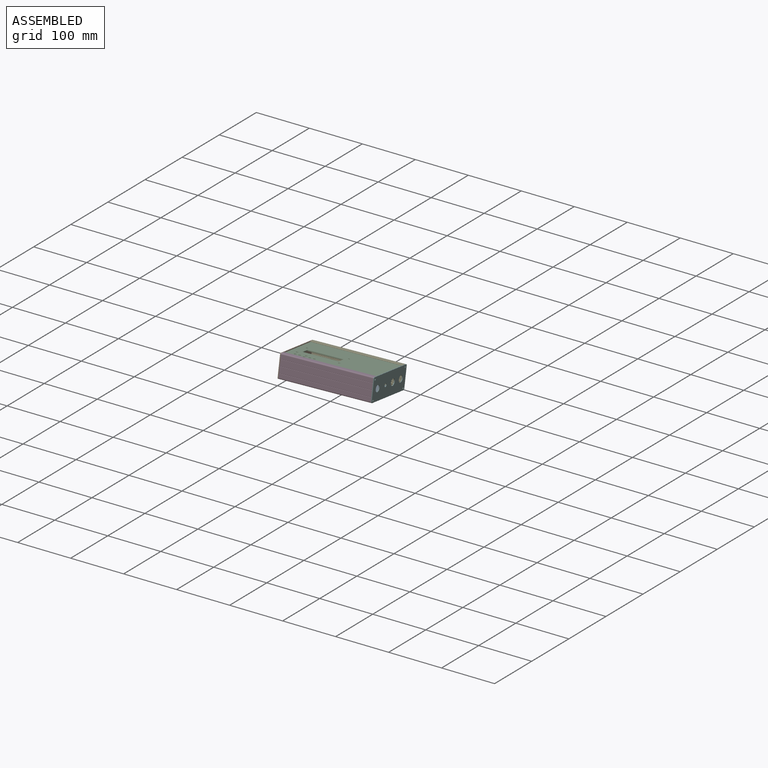
[diagram: assembled view]
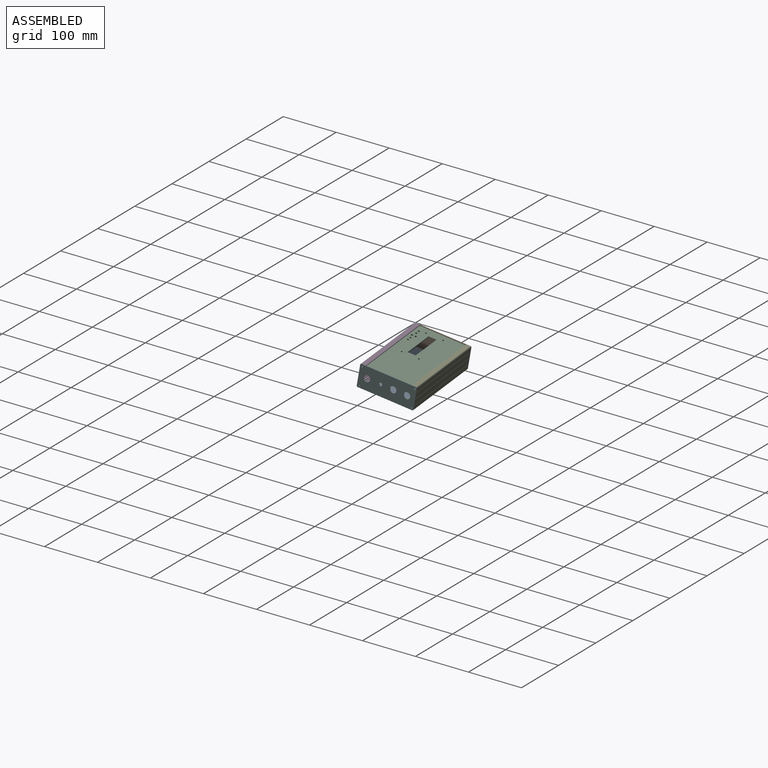
[diagram: assembled view, second angle]
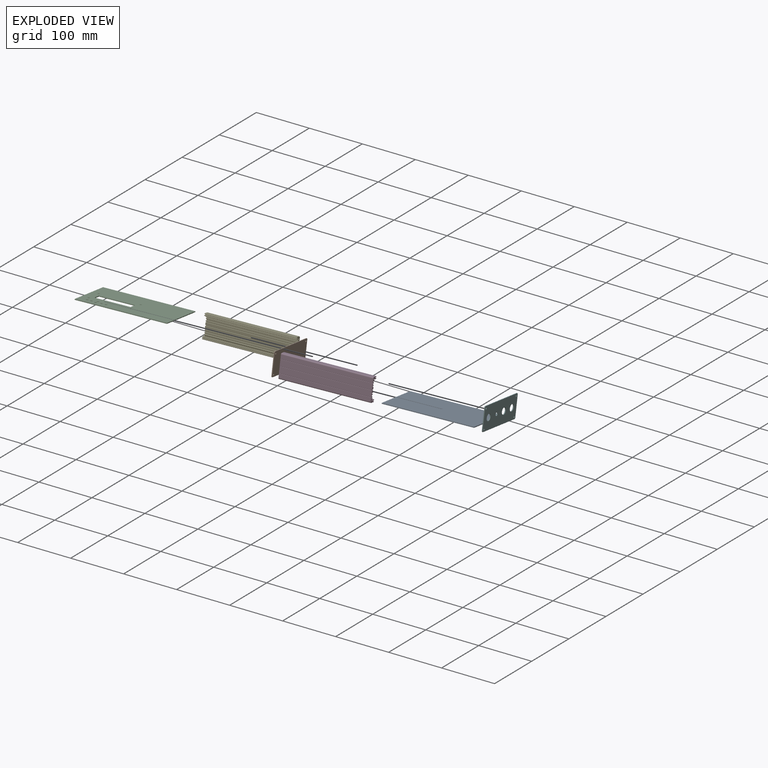
[diagram: exploded view]
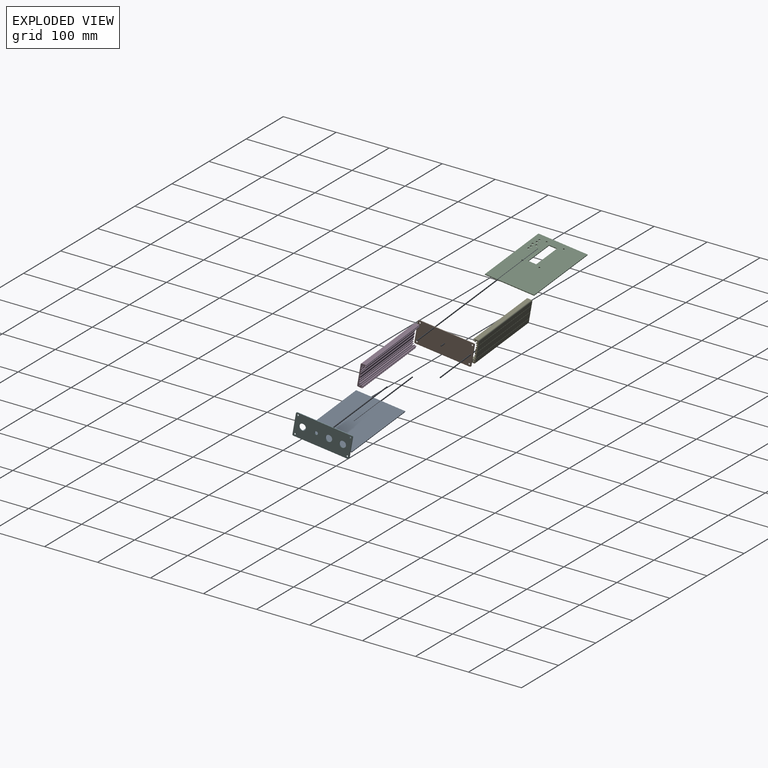
[diagram: exploded view, second angle]
ASSEMBLY  parts=6 mates=5
PART A: 6 faces, bbox 165x89.1x1.5 mm
  f0: plane 89.1x1.5mm, normal (-1,0,0), area 133.6mm2, adj f1,f3,f4,f5
  f1: plane 165x1.5mm, normal (0,-1,0), area 247.5mm2, adj f0,f2,f4,f5
  f2: plane 89.1x1.5mm, normal (1,0,0), area 133.6mm2, adj f1,f3,f4,f5
  f3: plane 165x1.5mm, normal (0,1,0), area 247.5mm2, adj f0,f2,f4,f5
  f4: plane 165x89.1mm, normal (0,0,1), area 14701.5mm2, adj f0,f1,f2,f3
  f5: plane 165x89.1mm, normal (0,0,-1), area 14701.5mm2, adj f0,f1,f2,f3
PART B: 14 faces, bbox 102.7x42x1.5 mm
  f0: cylinder r=2mm len=2mm, axis (0,0,-1), area 4.7mm2, adj f1,f8,f12,f13
  f1: plane 98.7x1.5mm, normal (0,-1,0), area 148.1mm2, adj f0,f2,f12,f13
  f2: cylinder r=2mm len=2mm, axis (0,0,-1), area 4.7mm2, adj f1,f3,f12,f13
  f3: plane 38x1.5mm, normal (1,0,0), area 57mm2, adj f2,f4,f12,f13
  f4: cylinder r=2mm len=2mm, axis (0,0,-1), area 4.7mm2, adj f3,f5,f12,f13
  f5: plane 98.7x1.5mm, normal (0,1,0), area 148.1mm2, adj f4,f6,f12,f13
  f6: cylinder r=2mm len=2mm, axis (0,0,-1), area 4.7mm2, adj f5,f8,f12,f13
  f7: cylinder r=1.5mm len=3mm, axis (0,0,-1), area 14.1mm2, adj f12,f13
  f8: plane 38x1.5mm, normal (-1,0,0), area 57mm2, adj f0,f6,f12,f13
  f9: cylinder r=1.5mm len=3mm, axis (0,0,-1), area 14.1mm2, adj f12,f13
  f10: cylinder r=1.5mm len=3mm, axis (0,0,-1), area 14.1mm2, adj f12,f13
  f11: cylinder r=1.5mm len=3mm, axis (0,0,-1), area 14.1mm2, adj f12,f13
  f12: plane 102.7x42mm, normal (0,0,1), area 4281.7mm2, adj f0,f1,f2,f3,f4,f5,f6,f7
  f13: plane 102.7x42mm, normal (0,0,-1), area 4281.7mm2, adj f0,f1,f2,f3,f4,f5,f6,f7
PART C: 20 faces, bbox 165x89.1x1.5 mm
  f0: plane 89.1x1.5mm, normal (-1,0,0), area 133.7mm2, adj f1,f17,f18,f19
  f1: plane 165x1.5mm, normal (0,-1,0), area 247.5mm2, adj f0,f2,f18,f19
  f2: plane 89.1x1.5mm, normal (1,0,0), area 133.7mm2, adj f1,f17,f18,f19
  f3: plane 64.5x1.5mm, normal (0,1,0), area 96.8mm2, adj f4,f6,f18,f19
  f4: plane 14.5x1.5mm, normal (1,0,0), area 21.8mm2, adj f3,f5,f18,f19
  f5: plane 64.5x1.5mm, normal (0,-1,0), area 96.8mm2, adj f4,f6,f18,f19
  f6: plane 14.5x1.5mm, normal (-1,0,0), area 21.8mm2, adj f3,f5,f18,f19
  f7: cylinder r=1.9mm len=3.8mm, axis (0,0,-1), area 17.9mm2, adj f18,f19
  f8: cylinder r=1.9mm len=3.8mm, axis (0,0,-1), area 17.9mm2, adj f18,f19
  f9: cylinder r=1.9mm len=3.8mm, axis (0,0,-1), area 17.9mm2, adj f18,f19
  f10: cylinder r=1.9mm len=3.8mm, axis (0,0,-1), area 17.9mm2, adj f18,f19
  f11: cylinder r=1.9mm len=3.8mm, axis (0,0,-1), area 17.9mm2, adj f18,f19
  f12: cylinder r=1.9mm len=3.8mm, axis (0,0,-1), area 17.9mm2, adj f18,f19
  f13: cylinder r=1.55mm len=3.1mm, axis (0,0,-1), area 14.6mm2, adj f18,f19
  f14: cylinder r=1.55mm len=3.1mm, axis (0,0,-1), area 14.6mm2, adj f18,f19
  f15: cylinder r=1.55mm len=3.1mm, axis (0,0,-1), area 14.6mm2, adj f18,f19
  f16: cylinder r=1.55mm len=3.1mm, axis (0,0,-1), area 14.6mm2, adj f18,f19
  f17: plane 165x1.5mm, normal (0,1,0), area 247.5mm2, adj f0,f2,f18,f19
  f18: plane 165x89.1mm, normal (0,0,1), area 13668mm2, adj f0,f1,f2,f3,f4,f5,f6,f7
  f19: plane 165x89.1mm, normal (0,0,-1), area 13668mm2, adj f0,f1,f2,f3,f4,f5,f6,f7
PART D: 136 faces, bbox 42x165x10 mm
  f0: cylinder r=0.1mm len=165mm, axis (0,1,0), area 25.9mm2, adj f1,f133,f134,f135
  f1: plane 165x2.8mm, normal (-1,0,0), area 462mm2, adj f0,f2,f134,f135
  f2: cylinder r=0.1mm len=165mm, axis (0,1,0), area 25.9mm2, adj f1,f3,f134,f135
  f3: plane 165x1.4mm, normal (0,0,1), area 231mm2, adj f2,f4,f134,f135
  f4: cylinder r=0.1mm len=165mm, axis (0,1,0), area 25.9mm2, adj f3,f5,f134,f135
  f5: plane 165x2.8mm, normal (1,0,0), area 462mm2, adj f4,f6,f134,f135
  f6: cylinder r=0.1mm len=165mm, axis (0,1,0), area 25.9mm2, adj f5,f7,f134,f135
  f7: plane 165x1mm, normal (0,0,1), area 165mm2, adj f6,f8,f134,f135
  f8: cylinder r=0.1mm len=165mm, axis (0,1,0), area 25.9mm2, adj f7,f9,f134,f135
  f9: plane 165x2.8mm, normal (-1,0,0), area 462mm2, adj f8,f10,f134,f135
  f10: cylinder r=0.1mm len=165mm, axis (0,1,0), area 25.9mm2, adj f9,f11,f134,f135
  f11: plane 165x0.8mm, normal (0,0,1), area 132mm2, adj f10,f12,f134,f135
  f12: cylinder r=0.1mm len=165mm, axis (0,1,0), area 25.9mm2, adj f11,f13,f134,f135
  f13: plane 165x0.73mm, normal (-1,0,0), area 120mm2, adj f12,f14,f134,f135
  f14: cylinder r=0.1mm len=165mm, axis (0,1,0), area 13mm2, adj f13,f15,f134,f135
  f15: plane 165x0.49mm, normal (-0.71,0,-0.71), area 114.4mm2, adj f14,f16,f134,f135
  f16: cylinder r=0.5mm len=165mm, axis (0,1,0), area 182.3mm2, adj f15,f17,f134,f135
  f17: cylinder r=1.5mm len=165mm, axis (0,1,0), area 256.1mm2, adj f16,f18,f134,f135
  f18: cylinder r=0.5mm len=165mm, axis (0,1,0), area 151.5mm2, adj f17,f19,f134,f135
  f19: cylinder r=1.5mm len=165mm, axis (0,1,0), area 256.1mm2, adj f18,f20,f134,f135
  f20: cylinder r=0.5mm len=165mm, axis (0,1,0), area 151.5mm2, adj f19,f21,f134,f135
  f21: cylinder r=1.5mm len=165mm, axis (0,1,0), area 256.1mm2, adj f20,f22,f134,f135
  f22: cylinder r=0.5mm len=165mm, axis (0,1,0), area 182.3mm2, adj f21,f23,f134,f135
  f23: plane 165x0.49mm, normal (0.71,0,0.71), area 114.4mm2, adj f22,f24,f134,f135
  f24: cylinder r=0.1mm len=165mm, axis (0,1,0), area 13mm2, adj f23,f25,f134,f135
  f25: plane 165x0.58mm, normal (0,0,1), area 95.2mm2, adj f24,f26,f134,f135
  f26: cylinder r=0.1mm len=165mm, axis (0,1,0), area 25.9mm2, adj f25,f27,f134,f135
  f27: plane 165x3.3mm, normal (-1,0,0), area 544.5mm2, adj f26,f28,f134,f135
  f28: cylinder r=0.1mm len=165mm, axis (0,1,0), area 25.9mm2, adj f27,f29,f134,f135
  f29: plane 165x1.6mm, normal (0,0,1), area 264mm2, adj f28,f30,f134,f135
  f30: cylinder r=0.1mm len=165mm, axis (0,1,0), area 25.9mm2, adj f29,f31,f134,f135
  f31: plane 165x1.8mm, normal (1,0,0), area 297mm2, adj f30,f32,f134,f135
  f32: cylinder r=0.1mm len=165mm, axis (0,1,0), area 25.9mm2, adj f31,f33,f134,f135
  f33: plane 165x1.3mm, normal (0,0,1), area 214.5mm2, adj f32,f34,f134,f135
  f34: cylinder r=0.1mm len=165mm, axis (0,1,0), area 25.9mm2, adj f33,f35,f134,f135
  f35: plane 165x1.8mm, normal (-1,0,0), area 297mm2, adj f34,f36,f134,f135
  f36: cylinder r=0.1mm len=165mm, axis (0,1,0), area 25.9mm2, adj f35,f37,f134,f135
  f37: plane 165x2.5mm, normal (0,0,1), area 412.5mm2, adj f36,f38,f134,f135
  f38: cylinder r=0.1mm len=165mm, axis (0,1,0), area 25.9mm2, adj f37,f39,f134,f135
  f39: plane 165x1.8mm, normal (1,0,0), area 297mm2, adj f38,f40,f134,f135
  f40: cylinder r=0.1mm len=165mm, axis (0,1,0), area 25.9mm2, adj f39,f41,f134,f135
  f41: plane 165x1.3mm, normal (0,0,1), area 214.5mm2, adj f40,f42,f134,f135
  f42: cylinder r=0.1mm len=165mm, axis (0,1,0), area 25.9mm2, adj f41,f43,f134,f135
  f43: plane 165x1.8mm, normal (-1,0,0), area 297mm2, adj f42,f44,f134,f135
  f44: cylinder r=0.1mm len=165mm, axis (0,1,0), area 25.9mm2, adj f43,f45,f134,f135
  f45: plane 165x1.6mm, normal (0,0,1), area 264mm2, adj f44,f46,f134,f135
  f46: cylinder r=0.1mm len=165mm, axis (0,1,0), area 25.9mm2, adj f45,f47,f134,f135
  f47: plane 165x1.8mm, normal (1,0,0), area 297mm2, adj f46,f48,f134,f135
  f48: cylinder r=0.1mm len=165mm, axis (0,1,0), area 25.9mm2, adj f47,f49,f134,f135
  f49: plane 165x3.75mm, normal (0,0,1), area 618.7mm2, adj f48,f50,f134,f135
  f50: cylinder r=0.1mm len=165mm, axis (0,1,0), area 25.9mm2, adj f49,f51,f134,f135
  f51: plane 165x1.8mm, normal (-1,0,0), area 297mm2, adj f50,f52,f134,f135
  f52: cylinder r=0.1mm len=165mm, axis (0,1,0), area 25.9mm2, adj f51,f53,f134,f135
  f53: plane 165x1.6mm, normal (0,0,1), area 264mm2, adj f52,f54,f134,f135
  f54: cylinder r=0.1mm len=165mm, axis (0,1,0), area 25.9mm2, adj f53,f55,f134,f135
  f55: plane 165x1.8mm, normal (1,0,0), area 297mm2, adj f54,f56,f134,f135
  f56: cylinder r=0.1mm len=165mm, axis (0,1,0), area 25.9mm2, adj f55,f57,f134,f135
  f57: plane 165x3.75mm, normal (0,0,1), area 618.7mm2, adj f56,f58,f134,f135
  f58: cylinder r=0.1mm len=165mm, axis (0,1,0), area 25.9mm2, adj f57,f59,f134,f135
  f59: plane 165x1.8mm, normal (-1,0,0), area 297mm2, adj f58,f60,f134,f135
  f60: cylinder r=0.1mm len=165mm, axis (0,1,0), area 25.9mm2, adj f59,f61,f134,f135
  f61: plane 165x1.6mm, normal (0,0,1), area 264mm2, adj f60,f62,f134,f135
  f62: cylinder r=0.1mm len=165mm, axis (0,1,0), area 25.9mm2, adj f61,f63,f134,f135
  f63: plane 165x1.8mm, normal (1,0,0), area 297mm2, adj f62,f64,f134,f135
  f64: cylinder r=0.1mm len=165mm, axis (0,1,0), area 25.9mm2, adj f63,f65,f134,f135
  f65: plane 165x1.3mm, normal (0,0,1), area 214.5mm2, adj f64,f66,f134,f135
  f66: cylinder r=0.1mm len=165mm, axis (0,1,0), area 25.9mm2, adj f65,f67,f134,f135
  f67: plane 165x1.8mm, normal (-1,0,0), area 297mm2, adj f66,f68,f134,f135
  f68: cylinder r=0.1mm len=165mm, axis (0,1,0), area 25.9mm2, adj f67,f69,f134,f135
  f69: plane 165x2.5mm, normal (0,0,1), area 412.5mm2, adj f68,f70,f134,f135
  f70: cylinder r=0.1mm len=165mm, axis (0,1,0), area 25.9mm2, adj f69,f71,f134,f135
  f71: plane 165x1.8mm, normal (1,0,0), area 297mm2, adj f70,f72,f134,f135
  f72: cylinder r=0.1mm len=165mm, axis (0,1,0), area 25.9mm2, adj f71,f73,f134,f135
  f73: plane 165x1.3mm, normal (0,0,1), area 214.5mm2, adj f72,f74,f134,f135
  f74: cylinder r=0.1mm len=165mm, axis (0,1,0), area 25.9mm2, adj f73,f75,f134,f135
  f75: plane 165x1.8mm, normal (-1,0,0), area 297mm2, adj f74,f76,f134,f135
  f76: cylinder r=0.1mm len=165mm, axis (0,1,0), area 25.9mm2, adj f75,f77,f134,f135
  f77: plane 165x1.6mm, normal (0,0,1), area 264mm2, adj f76,f78,f134,f135
  f78: cylinder r=0.1mm len=165mm, axis (0,1,0), area 25.9mm2, adj f77,f79,f134,f135
  f79: plane 165x3.3mm, normal (1,0,0), area 544.5mm2, adj f78,f80,f134,f135
  f80: cylinder r=0.1mm len=165mm, axis (0,1,0), area 25.9mm2, adj f79,f81,f134,f135
  f81: plane 165x0.58mm, normal (0,0,1), area 95.2mm2, adj f80,f82,f134,f135
  f82: cylinder r=0.1mm len=165mm, axis (0,1,0), area 13mm2, adj f81,f83,f134,f135
  f83: plane 165x0.49mm, normal (-0.71,0,0.71), area 114.4mm2, adj f82,f84,f134,f135
  f84: cylinder r=0.5mm len=165mm, axis (0,1,0), area 182.3mm2, adj f83,f85,f134,f135
  f85: cylinder r=1.5mm len=165mm, axis (0,1,0), area 256.1mm2, adj f84,f86,f134,f135
  f86: cylinder r=0.5mm len=165mm, axis (0,1,0), area 151.5mm2, adj f85,f87,f134,f135
  f87: cylinder r=1.5mm len=165mm, axis (0,1,0), area 256.1mm2, adj f86,f88,f134,f135
  f88: cylinder r=0.5mm len=165mm, axis (0,1,0), area 151.5mm2, adj f87,f89,f134,f135
  f89: cylinder r=1.5mm len=165mm, axis (0,1,0), area 256.1mm2, adj f88,f90,f134,f135
  f90: cylinder r=0.5mm len=165mm, axis (0,1,0), area 182.3mm2, adj f89,f91,f134,f135
  f91: plane 165x0.49mm, normal (0.71,0,-0.71), area 114.4mm2, adj f90,f92,f134,f135
  f92: cylinder r=0.1mm len=165mm, axis (0,1,0), area 13mm2, adj f91,f93,f134,f135
  f93: plane 165x0.73mm, normal (1,0,0), area 120mm2, adj f92,f94,f134,f135
  f94: cylinder r=0.1mm len=165mm, axis (0,1,0), area 25.9mm2, adj f93,f95,f134,f135
  f95: plane 165x0.8mm, normal (0,0,1), area 132mm2, adj f94,f96,f134,f135
  f96: cylinder r=0.1mm len=165mm, axis (0,1,0), area 25.9mm2, adj f95,f97,f134,f135
  f97: plane 165x2.8mm, normal (1,0,0), area 462mm2, adj f96,f98,f134,f135
  f98: cylinder r=0.1mm len=165mm, axis (0,1,0), area 25.9mm2, adj f97,f99,f134,f135
  f99: plane 165x1mm, normal (0,0,1), area 165mm2, adj f98,f100,f134,f135
  f100: cylinder r=0.1mm len=165mm, axis (0,1,0), area 25.9mm2, adj f99,f101,f134,f135
  f101: plane 165x2.8mm, normal (-1,0,0), area 462mm2, adj f100,f102,f134,f135
  f102: cylinder r=0.1mm len=165mm, axis (0,1,0), area 25.9mm2, adj f101,f103,f134,f135
  f103: plane 165x1.4mm, normal (0,0,1), area 231mm2, adj f102,f104,f134,f135
  f104: cylinder r=0.1mm len=165mm, axis (0,1,0), area 25.9mm2, adj f103,f105,f134,f135
  f105: plane 165x2.8mm, normal (1,0,0), area 462mm2, adj f104,f106,f134,f135
  f106: cylinder r=0.1mm len=165mm, axis (0,1,0), area 25.9mm2, adj f105,f107,f134,f135
  f107: plane 165x0.1mm, normal (0,0,1), area 16.5mm2, adj f106,f108,f134,f135
  f108: cylinder r=1mm len=165mm, axis (0,1,0), area 259.2mm2, adj f107,f109,f134,f135
  f109: plane 165x7mm, normal (-1,0,0), area 1155mm2, adj f108,f110,f134,f135
  f110: cylinder r=2mm len=165mm, axis (0,1,0), area 518.4mm2, adj f109,f111,f134,f135
  f111: plane 165x7.12mm, normal (0,0,-1), area 1174.3mm2, adj f110,f112,f134,f135
  f112: cylinder r=0.1mm len=165mm, axis (0,1,0), area 13mm2, adj f111,f113,f134,f135
  f113: plane 165x0.24mm, normal (0.71,0,-0.71), area 56.3mm2, adj f112,f114,f134,f135
  f114: cylinder r=0.1mm len=165mm, axis (0,1,0), area 25.9mm2, adj f113,f115,f134,f135
  f115: plane 165x0.24mm, normal (-0.71,0,-0.71), area 56.3mm2, adj f114,f116,f134,f135
  f116: cylinder r=0.1mm len=165mm, axis (0,1,0), area 13mm2, adj f115,f117,f134,f135
  f117: plane 165x10.73mm, normal (0,0,-1), area 1771.2mm2, adj f116,f118,f134,f135
  f118: cylinder r=0.1mm len=165mm, axis (0,1,0), area 13mm2, adj f117,f119,f134,f135
  f119: plane 165x0.24mm, normal (0.71,0,-0.71), area 56.3mm2, adj f118,f120,f134,f135
  f120: cylinder r=0.1mm len=165mm, axis (0,1,0), area 25.9mm2, adj f119,f121,f134,f135
  f121: plane 165x0.24mm, normal (-0.71,0,-0.71), area 56.3mm2, adj f120,f122,f134,f135
  f122: cylinder r=0.1mm len=165mm, axis (0,1,0), area 13mm2, adj f121,f123,f134,f135
  f123: plane 165x10.73mm, normal (0,0,-1), area 1771.2mm2, adj f122,f124,f134,f135
  f124: cylinder r=0.1mm len=165mm, axis (0,1,0), area 13mm2, adj f123,f125,f134,f135
  f125: plane 165x0.24mm, normal (0.71,0,-0.71), area 56.3mm2, adj f124,f126,f134,f135
  f126: cylinder r=0.1mm len=165mm, axis (0,1,0), area 25.9mm2, adj f125,f127,f134,f135
  f127: plane 165x0.24mm, normal (-0.71,0,-0.71), area 56.3mm2, adj f126,f128,f134,f135
  f128: cylinder r=0.1mm len=165mm, axis (0,1,0), area 13mm2, adj f127,f129,f134,f135
  f129: plane 165x7.12mm, normal (0,0,-1), area 1174.3mm2, adj f128,f130,f134,f135
  f130: cylinder r=2mm len=165mm, axis (0,1,0), area 518.4mm2, adj f129,f131,f134,f135
  f131: plane 165x7mm, normal (1,0,0), area 1155mm2, adj f130,f132,f134,f135
  f132: cylinder r=1mm len=165mm, axis (0,1,0), area 259.2mm2, adj f131,f133,f134,f135
  f133: plane 165x0.1mm, normal (0,0,1), area 16.5mm2, adj f0,f132,f134,f135
  f134: plane 42x10mm, normal (0,-1,0), area 156.4mm2, adj f0,f1,f2,f3,f4,f5,f6,f7
  f135: plane 42x10mm, normal (0,1,0), area 156.4mm2, adj f0,f1,f2,f3,f4,f5,f6,f7
PART E: same geometry as D
PART F: 18 faces, bbox 102.7x42x1.5 mm
  f0: cylinder r=2mm len=2mm, axis (0,0,-1), area 4.7mm2, adj f1,f7,f16,f17
  f1: plane 98.7x1.5mm, normal (0,-1,0), area 148mm2, adj f0,f2,f16,f17
  f2: cylinder r=2mm len=2mm, axis (0,0,-1), area 4.7mm2, adj f1,f3,f16,f17
  f3: plane 38x1.5mm, normal (1,0,0), area 57mm2, adj f2,f4,f16,f17
  f4: cylinder r=2mm len=2mm, axis (0,0,-1), area 4.7mm2, adj f3,f5,f16,f17
  f5: plane 98.7x1.5mm, normal (0,1,0), area 148mm2, adj f4,f6,f16,f17
  f6: cylinder r=2mm len=2mm, axis (0,0,-1), area 4.7mm2, adj f5,f7,f16,f17
  f7: plane 38x1.5mm, normal (-1,0,0), area 57mm2, adj f0,f6,f16,f17
  f8: cylinder r=6mm len=12mm, axis (0,0,-1), area 56.5mm2, adj f16,f17
  f9: cylinder r=6mm len=12mm, axis (0,0,-1), area 56.5mm2, adj f16,f17
  f10: cylinder r=6mm len=12mm, axis (0,0,-1), area 56.5mm2, adj f16,f17
  f11: cylinder r=3mm len=6mm, axis (0,0,-1), area 28.3mm2, adj f16,f17
  f12: cylinder r=1.5mm len=3mm, axis (0,0,-1), area 14.1mm2, adj f16,f17
  f13: cylinder r=1.5mm len=3mm, axis (0,0,-1), area 14.1mm2, adj f16,f17
  f14: cylinder r=1.5mm len=3mm, axis (0,0,-1), area 14.1mm2, adj f16,f17
  f15: cylinder r=1.5mm len=3mm, axis (0,0,-1), area 14.1mm2, adj f16,f17
  f16: plane 102.7x42mm, normal (0,0,1), area 3914.1mm2, adj f0,f1,f2,f3,f4,f5,f6,f7
  f17: plane 102.7x42mm, normal (0,0,-1), area 3914.1mm2, adj f0,f1,f2,f3,f4,f5,f6,f7
PLACE A rot(axis=(-0.89,0.04,0.45),11.2deg) t=(104.78,-326.78,-136.82)mm
PLACE B rot(axis=(0.57,-0.63,-0.53),111.2deg) t=(-10.42,176.02,-449.61)mm
PLACE C rot(axis=(-0.89,0.04,0.45),11.2deg) t=(87,-73.18,-142.95)mm
PLACE D rot(axis=(-0.62,0.58,0.53),129deg) t=(19.33,-117.15,-153.68)mm
PLACE E rot(axis=(0.56,-0.5,0.66),117.2deg) t=(11.25,-26.21,-169.71)mm
PLACE F rot(axis=(0.57,-0.63,-0.53),111.2deg) t=(181.77,-87.57,-295.39)mm
MATE fastened E.f2 <-> C.f0  axis (-1,-0.09,0.02) through (11.44,-24.85,-149.95)mm
MATE fastened D.f87 <-> F.f13  axis (-1,-0.09,0.02) through (183.79,-101.02,-139.26)mm
MATE fastened E.f21 <-> F.f12  axis (1,0.09,-0.02) through (175.54,-8.11,-155.64)mm
MATE fastened D.f85 <-> B.f10  axis (-1,-0.09,0.02) through (19.42,-115.18,-136.76)mm
MATE fastened D.f4 <-> A.f0  axis (-1,-0.09,0.02) through (19.15,-118.27,-172.06)mm
